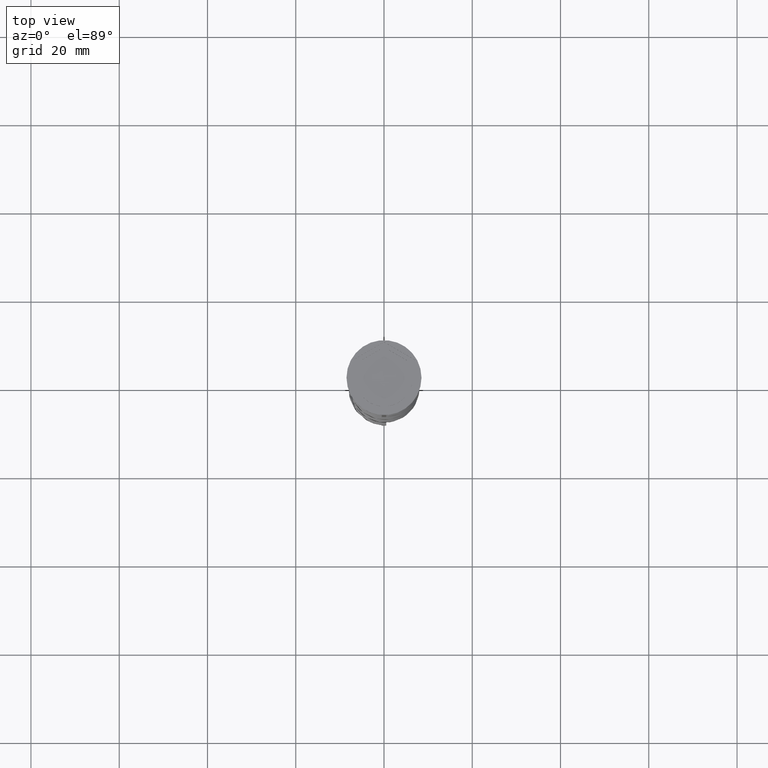
[diagram: clean part render]
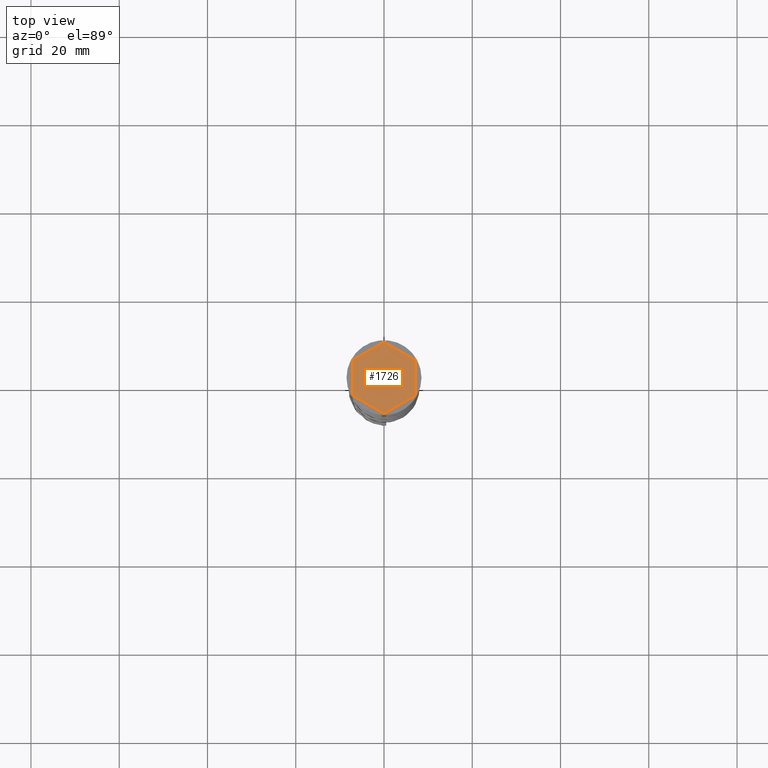
[diagram: same view with one face highlighted and labeled with its STEP entity id]
A machine part, top view. The second image highlights one B-rep face of the part: STEP entity #1726.
In plain terms, the highlighted planar face has unit normal (0, 0, 1).
Its self-contained STEP definition (entity closure, byte-faithful):
#14 = VECTOR ( 'NONE', #2715, 1000.000000000000000 ) ;
#24 = VECTOR ( 'NONE', #2584, 1000.000000000000000 ) ;
#44 = CARTESIAN_POINT ( 'NONE',  ( 0.000000000000000000, 0.000000000000000000, -1.000000000000000000 ) ) ;
#63 = EDGE_CURVE ( 'NONE', #2964, #3724, #1007, .T. ) ;
#106 = FACE_BOUND ( 'NONE', #3171, .T. ) ;
#128 = CARTESIAN_POINT ( 'NONE',  ( -5.165063509461097269, -3.946152422706633356, -1.000000000000000888 ) ) ;
#129 = CARTESIAN_POINT ( 'NONE',  ( 0.000000000000000000, 0.000000000000000000, -1.000000000000000000 ) ) ;
#146 = LINE ( 'NONE', #2719, #3353 ) ;
#156 = CARTESIAN_POINT ( 'NONE',  ( -6.500000000000000888, 0.000000000000000000, -1.000000000000000000 ) ) ;
#208 = AXIS2_PLACEMENT_3D ( 'NONE', #962, #426, #1247 ) ;
#231 = DIRECTION ( 'NONE',  ( 1.000000000000000000, 0.000000000000000000, 0.000000000000000000 ) ) ;
#237 = CARTESIAN_POINT ( 'NONE',  ( -0.8349364905388981795, 6.446152422706633800, -1.000000000000000888 ) ) ;
#247 = CIRCLE ( 'NONE', #2681, 6.500000000000000888 ) ;
#269 = ORIENTED_EDGE ( 'NONE', *, *, #1565, .F. ) ;
#309 = CARTESIAN_POINT ( 'NONE',  ( 0.000000000000000000, 0.000000000000000000, -1.000000000000000000 ) ) ;
#312 = EDGE_CURVE ( 'NONE', #3284, #659, #1953, .T. ) ;
#314 = AXIS2_PLACEMENT_3D ( 'NONE', #309, #2581, #592 ) ;
#348 = DIRECTION ( 'NONE',  ( 0.000000000000000000, 0.000000000000000000, 1.000000000000000000 ) ) ;
#407 = LINE ( 'NONE', #3246, #2434 ) ;
#418 = EDGE_LOOP ( 'NONE', ( #1624, #1272, #767 ) ) ;
#426 = DIRECTION ( 'NONE',  ( 0.000000000000000000, 0.000000000000000000, 1.000000000000000000 ) ) ;
#435 = VECTOR ( 'NONE', #2290, 1000.000000000000000 ) ;
#468 = CARTESIAN_POINT ( 'NONE',  ( 0.000000000000000000, 0.000000000000000000, -1.000000000000000000 ) ) ;
#490 = CIRCLE ( 'NONE', #3531, 6.500000000000000888 ) ;
#589 = EDGE_CURVE ( 'NONE', #2393, #2964, #758, .T. ) ;
#592 = DIRECTION ( 'NONE',  ( 1.000000000000000000, 0.000000000000000000, 0.000000000000000000 ) ) ;
#614 = VERTEX_POINT ( 'NONE', #2870 ) ;
#633 = ORIENTED_EDGE ( 'NONE', *, *, #1326, .F. ) ;
#636 = EDGE_CURVE ( 'NONE', #1808, #2394, #1060, .T. ) ;
#639 = EDGE_CURVE ( 'NONE', #2996, #1496, #247, .T. ) ;
#659 = VERTEX_POINT ( 'NONE', #3441 ) ;
#691 = CARTESIAN_POINT ( 'NONE',  ( 0.000000000000000000, 0.000000000000000000, -1.000000000000000000 ) ) ;
#746 = VECTOR ( 'NONE', #3287, 1000.000000000000000 ) ;
#758 = LINE ( 'NONE', #1994, #2380 ) ;
#767 = ORIENTED_EDGE ( 'NONE', *, *, #312, .F. ) ;
#839 = ORIENTED_EDGE ( 'NONE', *, *, #3201, .F. ) ;
#916 = CARTESIAN_POINT ( 'NONE',  ( 0.000000000000000000, 0.000000000000000000, -1.000000000000000000 ) ) ;
#962 = CARTESIAN_POINT ( 'NONE',  ( 0.000000000000000000, 0.000000000000000000, -1.000000000000000000 ) ) ;
#975 = DIRECTION ( 'NONE',  ( 0.8660254037844388186, -0.4999999999999998335, 0.000000000000000000 ) ) ;
#1007 = LINE ( 'NONE', #3330, #14 ) ;
#1008 = VERTEX_POINT ( 'NONE', #128 ) ;
#1050 = CARTESIAN_POINT ( 'NONE',  ( 2.174016704710901386E-15, -8.082903768654762899, -1.000000000000000000 ) ) ;
#1060 = LINE ( 'NONE', #3156, #2064 ) ;
#1074 = ORIENTED_EDGE ( 'NONE', *, *, #1584, .F. ) ;
#1156 = CIRCLE ( 'NONE', #314, 6.500000000000000888 ) ;
#1175 = ORIENTED_EDGE ( 'NONE', *, *, #589, .T. ) ;
#1197 = DIRECTION ( 'NONE',  ( 1.000000000000000000, 0.000000000000000000, 0.000000000000000000 ) ) ;
#1208 = ORIENTED_EDGE ( 'NONE', *, *, #639, .F. ) ;
#1216 = FACE_BOUND ( 'NONE', #418, .T. ) ;
#1247 = DIRECTION ( 'NONE',  ( 1.000000000000000000, 0.000000000000000000, 0.000000000000000000 ) ) ;
#1259 = FACE_BOUND ( 'NONE', #1318, .T. ) ;
#1272 = ORIENTED_EDGE ( 'NONE', *, *, #3054, .F. ) ;
#1274 = ORIENTED_EDGE ( 'NONE', *, *, #636, .F. ) ;
#1275 = DIRECTION ( 'NONE',  ( 0.8660254037844387076, -0.4999999999999997224, 0.000000000000000000 ) ) ;
#1283 = DIRECTION ( 'NONE',  ( 0.000000000000000000, 0.000000000000000000, 1.000000000000000000 ) ) ;
#1318 = EDGE_LOOP ( 'NONE', ( #2189, #1274 ) ) ;
#1326 = EDGE_CURVE ( 'NONE', #1377, #614, #3073, .T. ) ;
#1343 = DIRECTION ( 'NONE',  ( 0.000000000000000000, 0.000000000000000000, 1.000000000000000000 ) ) ;
#1377 = VERTEX_POINT ( 'NONE', #1385 ) ;
#1385 = CARTESIAN_POINT ( 'NONE',  ( 5.165063509461097269, -3.946152422706631580, -1.000000000000000888 ) ) ;
#1408 = ORIENTED_EDGE ( 'NONE', *, *, #2076, .F. ) ;
#1430 = ORIENTED_EDGE ( 'NONE', *, *, #3097, .T. ) ;
#1447 = CARTESIAN_POINT ( 'NONE',  ( -6.000000000000000000, -3.464101615137754830, -1.000000000000000888 ) ) ;
#1468 = EDGE_CURVE ( 'NONE', #2394, #1808, #1156, .T. ) ;
#1471 = LINE ( 'NONE', #3491, #2872 ) ;
#1489 = EDGE_CURVE ( 'NONE', #2284, #3284, #1892, .T. ) ;
#1495 = CARTESIAN_POINT ( 'NONE',  ( 5.999999999999999112, -2.500000000000003109, -1.000000000000000888 ) ) ;
#1496 = VERTEX_POINT ( 'NONE', #2003 ) ;
#1537 = AXIS2_PLACEMENT_3D ( 'NONE', #129, #1283, #2441 ) ;
#1565 = EDGE_CURVE ( 'NONE', #1496, #2996, #407, .T. ) ;
#1580 = FACE_BOUND ( 'NONE', #2235, .T. ) ;
#1584 = EDGE_CURVE ( 'NONE', #2794, #2169, #490, .T. ) ;
#1600 = DIRECTION ( 'NONE',  ( 0.000000000000000000, 0.000000000000000000, 1.000000000000000000 ) ) ;
#1624 = ORIENTED_EDGE ( 'NONE', *, *, #1489, .F. ) ;
#1631 = EDGE_CURVE ( 'NONE', #1978, #2393, #146, .T. ) ;
#1645 = VERTEX_POINT ( 'NONE', #2114 ) ;
#1646 = DIRECTION ( 'NONE',  ( 0.8660254037844384856, 0.5000000000000001110, 0.000000000000000000 ) ) ;
#1714 = VECTOR ( 'NONE', #3622, 1000.000000000000000 ) ;
#1726 = ADVANCED_FACE ( 'NONE', ( #1580, #2703, #2741, #106, #1216, #1259, #2420 ), #3582, .T. ) ;
#1735 = CARTESIAN_POINT ( 'NONE',  ( 7.000000000000000000, -4.041451884327381450, -1.000000000000000000 ) ) ;
#1808 = VERTEX_POINT ( 'NONE', #2795 ) ;
#1892 = CIRCLE ( 'NONE', #2248, 6.500000000000000888 ) ;
#1953 = CIRCLE ( 'NONE', #3587, 6.500000000000000888 ) ;
#1978 = VERTEX_POINT ( 'NONE', #3620 ) ;
#1984 = CARTESIAN_POINT ( 'NONE',  ( 0.000000000000000000, 0.000000000000000000, -1.000000000000000000 ) ) ;
#1988 = CARTESIAN_POINT ( 'NONE',  ( 0.000000000000000000, 8.082903768654762899, -1.000000000000000000 ) ) ;
#1994 = CARTESIAN_POINT ( 'NONE',  ( 2.174016704710901386E-15, -8.082903768654762899, -1.000000000000000000 ) ) ;
#2003 = CARTESIAN_POINT ( 'NONE',  ( 0.8349364905389003999, 6.446152422706633800, -1.000000000000000888 ) ) ;
#2007 = EDGE_LOOP ( 'NONE', ( #2464, #633 ) ) ;
#2064 = VECTOR ( 'NONE', #3082, 1000.000000000000000 ) ;
#2076 = EDGE_CURVE ( 'NONE', #3589, #1008, #3470, .T. ) ;
#2078 = DIRECTION ( 'NONE',  ( 0.000000000000000000, 0.000000000000000000, 1.000000000000000000 ) ) ;
#2088 = ORIENTED_EDGE ( 'NONE', *, *, #3061, .T. ) ;
#2095 = DIRECTION ( 'NONE',  ( 1.000000000000000000, 0.000000000000000000, 0.000000000000000000 ) ) ;
#2114 = CARTESIAN_POINT ( 'NONE',  ( -7.000000000000000888, 4.041451884327381450, -1.000000000000000000 ) ) ;
#2133 = VECTOR ( 'NONE', #2839, 1000.000000000000000 ) ;
#2142 = CARTESIAN_POINT ( 'NONE',  ( -7.000000000000000888, 4.041451884327381450, -1.000000000000000000 ) ) ;
#2169 = VERTEX_POINT ( 'NONE', #2598 ) ;
#2189 = ORIENTED_EDGE ( 'NONE', *, *, #1468, .F. ) ;
#2235 = EDGE_LOOP ( 'NONE', ( #1208, #269 ) ) ;
#2248 = AXIS2_PLACEMENT_3D ( 'NONE', #1984, #2596, #1197 ) ;
#2284 = VERTEX_POINT ( 'NONE', #3033 ) ;
#2290 = DIRECTION ( 'NONE',  ( -0.8660254037844385966, 0.5000000000000001110, 0.000000000000000000 ) ) ;
#2309 = CARTESIAN_POINT ( 'NONE',  ( 5.165063509461097269, 3.946152422706633356, -1.000000000000000888 ) ) ;
#2324 = LINE ( 'NONE', #1988, #3309 ) ;
#2380 = VECTOR ( 'NONE', #1646, 1000.000000000000227 ) ;
#2393 = VERTEX_POINT ( 'NONE', #1050 ) ;
#2394 = VERTEX_POINT ( 'NONE', #237 ) ;
#2415 = CARTESIAN_POINT ( 'NONE',  ( 0.000000000000000000, 8.082903768654762899, -1.000000000000000000 ) ) ;
#2420 = FACE_OUTER_BOUND ( 'NONE', #3430, .T. ) ;
#2434 = VECTOR ( 'NONE', #975, 999.9999999999998863 ) ;
#2441 = DIRECTION ( 'NONE',  ( 1.000000000000000000, 0.000000000000000000, 0.000000000000000000 ) ) ;
#2464 = ORIENTED_EDGE ( 'NONE', *, *, #3653, .F. ) ;
#2546 = CARTESIAN_POINT ( 'NONE',  ( 7.000000000000000888, 4.041451884327382338, -1.000000000000000000 ) ) ;
#2581 = DIRECTION ( 'NONE',  ( 0.000000000000000000, 0.000000000000000000, 1.000000000000000000 ) ) ;
#2584 = DIRECTION ( 'NONE',  ( 0.000000000000000000, 1.000000000000000000, 0.000000000000000000 ) ) ;
#2596 = DIRECTION ( 'NONE',  ( 0.000000000000000000, 0.000000000000000000, 1.000000000000000000 ) ) ;
#2598 = CARTESIAN_POINT ( 'NONE',  ( 6.000000000000000888, 2.500000000000000444, -1.000000000000000888 ) ) ;
#2603 = DIRECTION ( 'NONE',  ( -0.8660254037844385966, -0.4999999999999999445, 0.000000000000000000 ) ) ;
#2610 = EDGE_LOOP ( 'NONE', ( #1074, #839 ) ) ;
#2644 = DIRECTION ( 'NONE',  ( -0.8660254037844387076, 0.4999999999999998890, 0.000000000000000000 ) ) ;
#2681 = AXIS2_PLACEMENT_3D ( 'NONE', #468, #1343, #231 ) ;
#2703 = FACE_BOUND ( 'NONE', #2610, .T. ) ;
#2715 = DIRECTION ( 'NONE',  ( 1.073081856240827703E-16, 1.000000000000000000, 0.000000000000000000 ) ) ;
#2719 = CARTESIAN_POINT ( 'NONE',  ( -7.000000000000000888, -4.041451884327381450, -1.000000000000000000 ) ) ;
#2741 = FACE_BOUND ( 'NONE', #2007, .T. ) ;
#2745 = CARTESIAN_POINT ( 'NONE',  ( -0.8349364905389056180, -6.446152422706632024, -1.000000000000000888 ) ) ;
#2794 = VERTEX_POINT ( 'NONE', #1495 ) ;
#2795 = CARTESIAN_POINT ( 'NONE',  ( -5.165063509461101710, 3.946152422706626250, -1.000000000000000888 ) ) ;
#2802 = CARTESIAN_POINT ( 'NONE',  ( -1.301042606982605321E-15, -6.928203230275509661, -1.000000000000000888 ) ) ;
#2819 = ORIENTED_EDGE ( 'NONE', *, *, #3571, .F. ) ;
#2839 = DIRECTION ( 'NONE',  ( -0.8660254037844387076, -0.4999999999999998890, 0.000000000000000000 ) ) ;
#2843 = VERTEX_POINT ( 'NONE', #2415 ) ;
#2870 = CARTESIAN_POINT ( 'NONE',  ( 0.8349364905389008440, -6.446152422706633800, -1.000000000000000888 ) ) ;
#2872 = VECTOR ( 'NONE', #2644, 1000.000000000000114 ) ;
#2876 = CIRCLE ( 'NONE', #208, 6.500000000000000888 ) ;
#2932 = DIRECTION ( 'NONE',  ( 1.000000000000000000, 0.000000000000000000, 0.000000000000000000 ) ) ;
#2964 = VERTEX_POINT ( 'NONE', #1735 ) ;
#2988 = AXIS2_PLACEMENT_3D ( 'NONE', #691, #1600, #3668 ) ;
#2996 = VERTEX_POINT ( 'NONE', #2309 ) ;
#3000 = CIRCLE ( 'NONE', #1537, 6.500000000000000888 ) ;
#3033 = CARTESIAN_POINT ( 'NONE',  ( -6.000000000000000000, 2.500000000000001776, -1.000000000000000888 ) ) ;
#3054 = EDGE_CURVE ( 'NONE', #659, #2284, #3192, .T. ) ;
#3061 = EDGE_CURVE ( 'NONE', #2843, #1645, #2324, .T. ) ;
#3073 = LINE ( 'NONE', #2802, #2133 ) ;
#3082 = DIRECTION ( 'NONE',  ( 0.8660254037844385966, 0.5000000000000001110, -0.000000000000000000 ) ) ;
#3097 = EDGE_CURVE ( 'NONE', #3724, #2843, #1471, .T. ) ;
#3156 = CARTESIAN_POINT ( 'NONE',  ( 0.000000000000000000, 6.928203230275507885, -1.000000000000000888 ) ) ;
#3171 = EDGE_LOOP ( 'NONE', ( #2819, #1408 ) ) ;
#3192 = LINE ( 'NONE', #3455, #24 ) ;
#3201 = EDGE_CURVE ( 'NONE', #2169, #2794, #3345, .T. ) ;
#3246 = CARTESIAN_POINT ( 'NONE',  ( 6.000000000000000888, 3.464101615137753942, -1.000000000000000888 ) ) ;
#3273 = CARTESIAN_POINT ( 'NONE',  ( 5.999999999999999112, -3.464101615137755719, -1.000000000000000888 ) ) ;
#3284 = VERTEX_POINT ( 'NONE', #156 ) ;
#3287 = DIRECTION ( 'NONE',  ( 0.000000000000000000, -1.000000000000000000, 0.000000000000000000 ) ) ;
#3292 = ORIENTED_EDGE ( 'NONE', *, *, #63, .T. ) ;
#3309 = VECTOR ( 'NONE', #2603, 1000.000000000000114 ) ;
#3330 = CARTESIAN_POINT ( 'NONE',  ( 7.000000000000000000, -4.041451884327381450, -1.000000000000000000 ) ) ;
#3345 = LINE ( 'NONE', #3273, #1714 ) ;
#3353 = VECTOR ( 'NONE', #1275, 1000.000000000000114 ) ;
#3430 = EDGE_LOOP ( 'NONE', ( #1430, #2088, #3517, #3670, #1175, #3292 ) ) ;
#3441 = CARTESIAN_POINT ( 'NONE',  ( -6.000000000000000000, -2.500000000000001776, -1.000000000000000888 ) ) ;
#3455 = CARTESIAN_POINT ( 'NONE',  ( -6.000000000000000000, 3.464101615137752166, -1.000000000000000888 ) ) ;
#3470 = LINE ( 'NONE', #1447, #435 ) ;
#3491 = CARTESIAN_POINT ( 'NONE',  ( 7.000000000000000888, 4.041451884327382338, -1.000000000000000000 ) ) ;
#3517 = ORIENTED_EDGE ( 'NONE', *, *, #3611, .T. ) ;
#3531 = AXIS2_PLACEMENT_3D ( 'NONE', #916, #2078, #2095 ) ;
#3552 = LINE ( 'NONE', #2142, #746 ) ;
#3571 = EDGE_CURVE ( 'NONE', #1008, #3589, #3000, .T. ) ;
#3582 = PLANE ( 'NONE',  #2988 ) ;
#3587 = AXIS2_PLACEMENT_3D ( 'NONE', #44, #348, #2932 ) ;
#3589 = VERTEX_POINT ( 'NONE', #2745 ) ;
#3611 = EDGE_CURVE ( 'NONE', #1645, #1978, #3552, .T. ) ;
#3620 = CARTESIAN_POINT ( 'NONE',  ( -7.000000000000000888, -4.041451884327381450, -1.000000000000000000 ) ) ;
#3622 = DIRECTION ( 'NONE',  ( -2.503857664561932376E-16, -1.000000000000000000, 0.000000000000000000 ) ) ;
#3653 = EDGE_CURVE ( 'NONE', #614, #1377, #2876, .T. ) ;
#3668 = DIRECTION ( 'NONE',  ( 1.000000000000000000, 0.000000000000000000, -0.000000000000000000 ) ) ;
#3670 = ORIENTED_EDGE ( 'NONE', *, *, #1631, .T. ) ;
#3724 = VERTEX_POINT ( 'NONE', #2546 ) ;